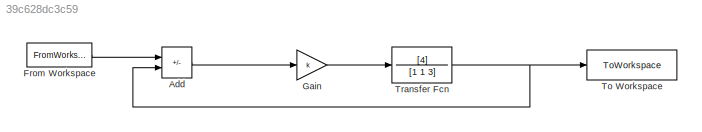
MODEL slx_39c628dc3c59
KIND model
CONFIG AbsTol = auto
CONFIG EnableMultiTasking = off
CONFIG FixedStep = 0.0001
CONFIG MaxStep = auto
CONFIG MinStep = auto
CONFIG RelTol = 1e-8
CONFIG SampleTimeConstraint = Unconstrained
CONFIG SolverName = ode4
CONFIG StartTime = 0.0
CONFIG StopTime = 20
BLOCK [Sum] Add
  IconShape = rectangular
  Inputs = +-
BLOCK [FromWorkspace] From Workspace
  VariableName = g_signal
BLOCK [Gain] Gain
  Gain = k
BLOCK [ToWorkspace] To Workspace
  FixptAsFi = on
  MaxDataPoints = inf
  SampleTime = -1
  SaveFormat = Structure With Time
  VariableName = y_out
BLOCK [TransferFcn] Transfer Fcn
  Denominator = [1 1 3]
  Numerator = [4]
LINE Add:1 -> Gain:1
LINE From Workspace:1 -> Add:1
LINE Gain:1 -> Transfer Fcn:1
NET Transfer Fcn:1 -> Add:2, To Workspace:1
note: NET lines group one-source signal fan-out (src -> all destinations, sorted); 1:1 wires keep LINE
